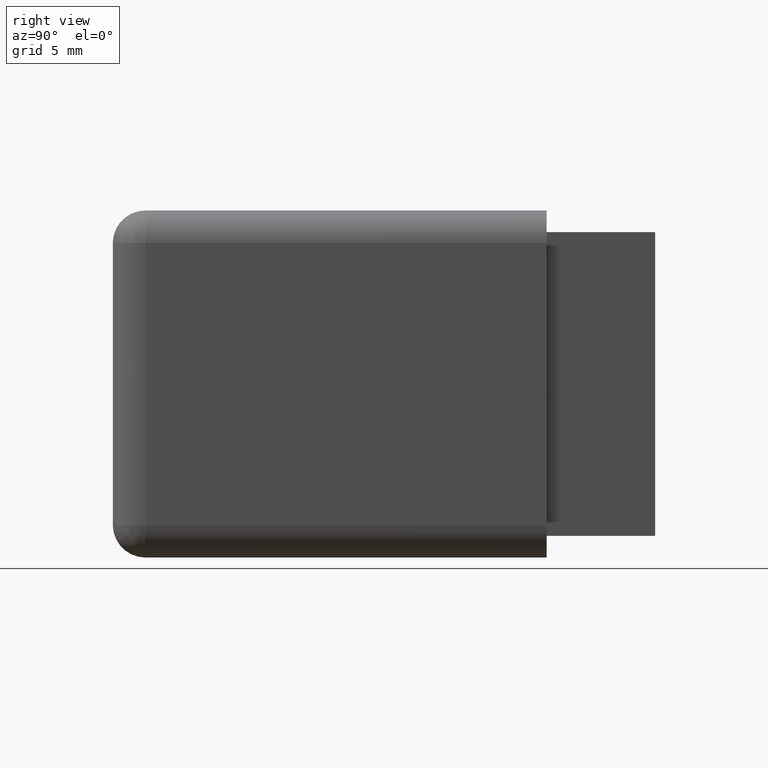
[diagram: clean part render]
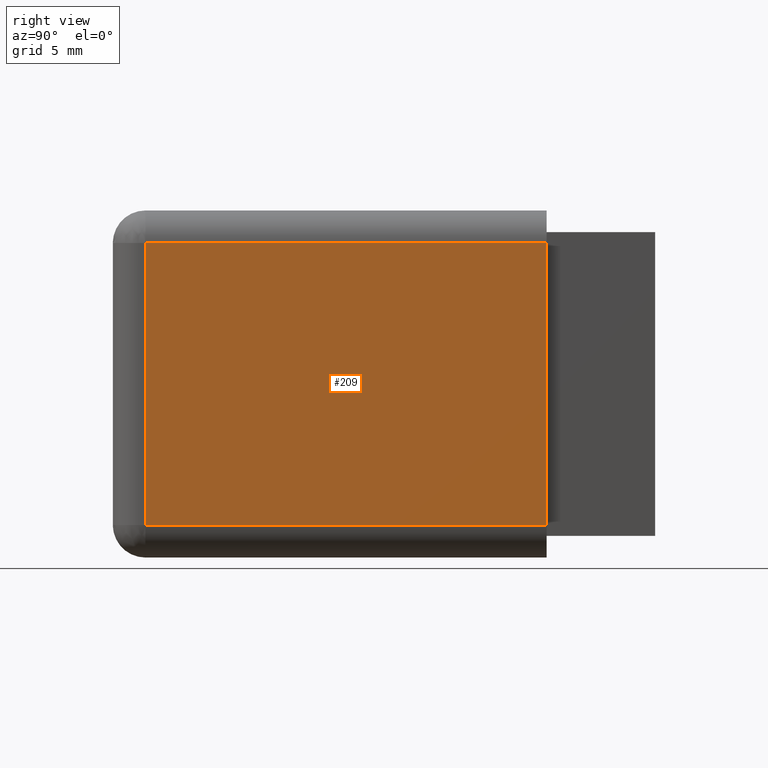
[diagram: same view with one face highlighted and labeled with its STEP entity id]
A machine part, right view. The second image highlights one B-rep face of the part: STEP entity #209.
In plain terms, the highlighted planar face has unit normal (-1, 0, 0).
Its self-contained STEP definition (entity closure, byte-faithful):
#170=CARTESIAN_POINT('',(8.000000000000004,0.574999999999999,-7.150000000000004));
#171=DIRECTION('',(-1.0,0.0,0.0));
#172=DIRECTION('',(0.0,0.0,1.0));
#173=AXIS2_PLACEMENT_3D('',#170,#171,#172);
#174=PLANE('',#173);
#175=CARTESIAN_POINT('',(8.000000000000004,1.500000000000001,6.499999999999997));
#176=VERTEX_POINT('',#175);
#177=CARTESIAN_POINT('',(8.000000000000004,1.500000000000001,-6.500000000000003));
#178=VERTEX_POINT('',#177);
#179=CARTESIAN_POINT('',(8.000000000000004,1.500000000000001,6.499999999999996));
#180=DIRECTION('',(0.0,0.0,-1.0));
#181=VECTOR('',#180,13.0);
#182=LINE('',#179,#181);
#183=EDGE_CURVE('',#176,#178,#182,.T.);
#184=ORIENTED_EDGE('',*,*,#183,.T.);
#185=CARTESIAN_POINT('',(8.000000000000004,20.0,-6.500000000000003));
#186=VERTEX_POINT('',#185);
#187=CARTESIAN_POINT('',(8.000000000000004,1.500000000000000,-6.500000000000003));
#188=DIRECTION('',(0.0,1.0,0.0));
#189=VECTOR('',#188,18.500000000000000);
#190=LINE('',#187,#189);
#191=EDGE_CURVE('',#178,#186,#190,.T.);
#192=ORIENTED_EDGE('',*,*,#191,.T.);
#193=CARTESIAN_POINT('',(8.000000000000004,20.0,6.499999999999997));
#194=VERTEX_POINT('',#193);
#195=CARTESIAN_POINT('',(8.000000000000004,20.0,6.499999999999996));
#196=DIRECTION('',(0.0,0.0,-1.0));
#197=VECTOR('',#196,13.0);
#198=LINE('',#195,#197);
#199=EDGE_CURVE('',#194,#186,#198,.T.);
#200=ORIENTED_EDGE('',*,*,#199,.F.);
#201=CARTESIAN_POINT('',(8.000000000000004,20.0,6.499999999999997));
#202=DIRECTION('',(0.0,-1.0,0.0));
#203=VECTOR('',#202,18.500000000000000);
#204=LINE('',#201,#203);
#205=EDGE_CURVE('',#194,#176,#204,.T.);
#206=ORIENTED_EDGE('',*,*,#205,.T.);
#207=EDGE_LOOP('',(#184,#192,#200,#206));
#208=FACE_OUTER_BOUND('',#207,.T.);
#209=ADVANCED_FACE('',(#208),#174,.F.);